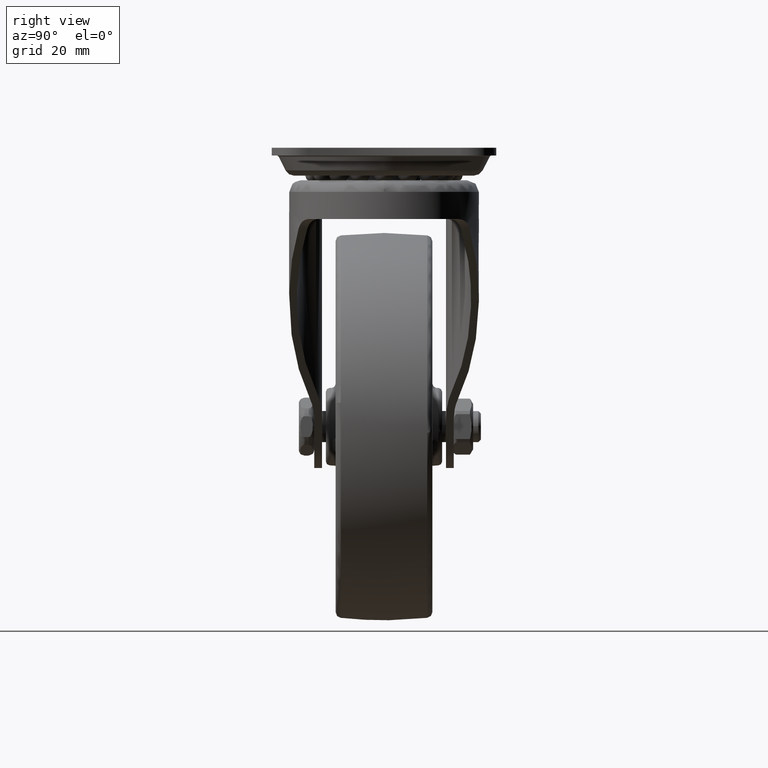
[diagram: clean part render]
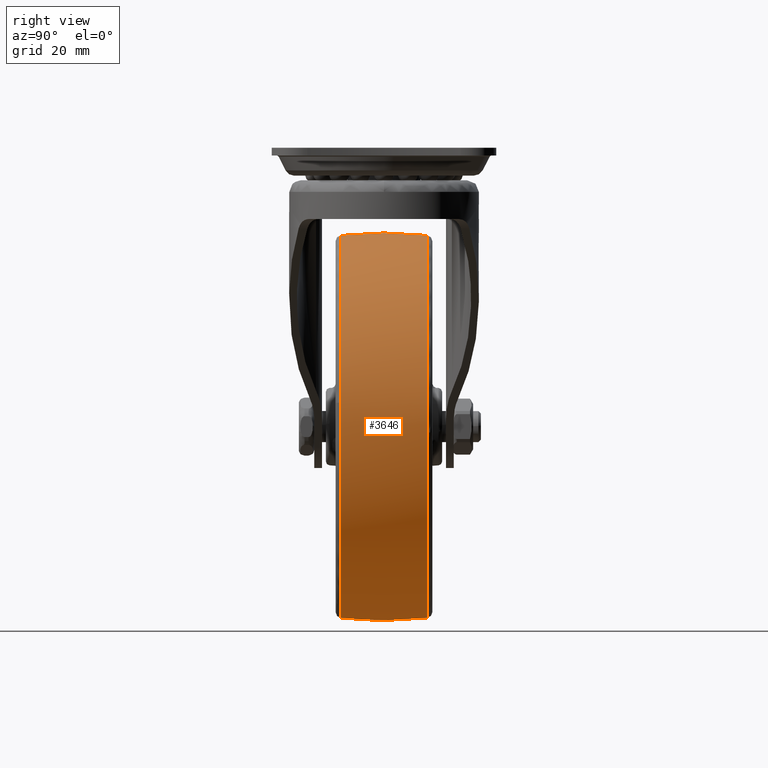
[diagram: same view with one face highlighted and labeled with its STEP entity id]
A machine part, right view. The second image highlights one B-rep face of the part: STEP entity #3646.
In plain terms, the highlighted face is a freeform B-spline surface patch.
Its self-contained STEP definition (entity closure, byte-faithful):
#2603=CARTESIAN_POINT('',(17.351149720172089,11.167499023491850,-71.517585406530657));
#2604=VERTEX_POINT('',#2603);
#2618=CARTESIAN_POINT('',(-32.0,11.167484830604160,-119.374480036664590));
#2619=VERTEX_POINT('',#2618);
#2620=CARTESIAN_POINT('',(17.351149720172089,11.167499023491857,-71.517585406530657));
#2621=CARTESIAN_POINT('',(15.879514701563959,11.167484830604161,-119.374480036664580));
#2622=CARTESIAN_POINT('',(-32.0,11.167484830604160,-119.374480036664590));
#2630=(BOUNDED_CURVE()B_SPLINE_CURVE(2,(#2620,#2621,#2622),.UNSPECIFIED.,.F.,.U.)B_SPLINE_CURVE_WITH_KNOTS((3,3),(0.255400342687223,0.500000000000000),.UNSPECIFIED.)CURVE()GEOMETRIC_REPRESENTATION_ITEM()RATIONAL_B_SPLINE_CURVE((0.987619549190724,0.713433676195973,1.0))REPRESENTATION_ITEM(''));
#2631=EDGE_CURVE('',#2604,#2619,#2630,.T.);
#2633=CARTESIAN_POINT('',(-81.044247313738538,11.167491407916470,-75.700965824303069));
#2634=VERTEX_POINT('',#2633);
#2648=CARTESIAN_POINT('',(-81.183578000515638,11.167493547169890,-65.662392937721791));
#2649=VERTEX_POINT('',#2648);
#2650=CARTESIAN_POINT('',(-81.044247313738538,11.167491407916467,-75.700965824303069));
#2651=CARTESIAN_POINT('',(-81.374479220250251,11.167491956815107,-72.860047488954109));
#2652=CARTESIAN_POINT('',(-81.374479151444035,11.167492573214350,-70.000000261031047));
#2653=CARTESIAN_POINT('',(-81.374479099166493,11.167493041541691,-67.826995757362397));
#2654=CARTESIAN_POINT('',(-81.183578000515638,11.167493547169892,-65.662392937721791));
#2662=(BOUNDED_CURVE()B_SPLINE_CURVE(2,(#2650,#2651,#2652,#2653,#2654),.UNSPECIFIED.,.F.,.U.)B_SPLINE_CURVE_WITH_KNOTS((3,2,3),(0.730000070278203,0.750000000000000,0.765281546649790),.UNSPECIFIED.)CURVE()GEOMETRIC_REPRESENTATION_ITEM()RATIONAL_B_SPLINE_CURVE((0.956886256515248,0.976568624830960,1.0,0.982096554453180,0.966381847612886))REPRESENTATION_ITEM(''));
#2663=EDGE_CURVE('',#2634,#2649,#2662,.T.);
#2752=CARTESIAN_POINT('',(-32.0,11.167512690355380,-20.625523094152811));
#2753=VERTEX_POINT('',#2752);
#2754=CARTESIAN_POINT('',(-81.183578000515638,11.167493547169887,-65.662392937721791));
#2755=CARTESIAN_POINT('',(-77.211676609979179,11.167504013356263,-20.625523206741690));
#2756=CARTESIAN_POINT('',(-32.0,11.167512690355380,-20.625523094152811));
#2764=(BOUNDED_CURVE()B_SPLINE_CURVE(2,(#2754,#2755,#2756),.UNSPECIFIED.,.F.,.U.)B_SPLINE_CURVE_WITH_KNOTS((3,3),(0.765281546649790,1.0),.UNSPECIFIED.)CURVE()GEOMETRIC_REPRESENTATION_ITEM()RATIONAL_B_SPLINE_CURVE((0.966381847612886,0.725010226733367,1.0))REPRESENTATION_ITEM(''));
#2765=EDGE_CURVE('',#2649,#2753,#2764,.T.);
#2767=CARTESIAN_POINT('',(-32.0,11.167512690355380,-20.625523094152811));
#2768=CARTESIAN_POINT('',(17.374476905847200,11.167512690355382,-20.625523094152818));
#2769=CARTESIAN_POINT('',(17.374476905847200,11.167498760479770,-70.000001565408681));
#2770=CARTESIAN_POINT('',(17.374476905847200,11.167498546353475,-70.758972770093905));
#2771=CARTESIAN_POINT('',(17.351149720172089,11.167499023491857,-71.517585406530657));
#2779=(BOUNDED_CURVE()B_SPLINE_CURVE(2,(#2767,#2768,#2769,#2770,#2771),.UNSPECIFIED.,.F.,.U.)B_SPLINE_CURVE_WITH_KNOTS((3,2,3),(0.0,0.250000000000000,0.255400342687223),.UNSPECIFIED.)CURVE()GEOMETRIC_REPRESENTATION_ITEM()RATIONAL_B_SPLINE_CURVE((1.0,0.707106781186548,1.0,0.993673104990574,0.987619549190724))REPRESENTATION_ITEM(''));
#2780=EDGE_CURVE('',#2753,#2604,#2779,.T.);
#2821=CARTESIAN_POINT('',(-14.516222482524450,-11.167489464854841,-116.175282812570200));
#2822=VERTEX_POINT('',#2821);
#2823=CARTESIAN_POINT('',(-32.0,-11.167488677243210,-119.374479604382800));
#2824=VERTEX_POINT('',#2823);
#2825=CARTESIAN_POINT('',(-14.516222482524451,-11.167489464854839,-116.175282812570200));
#2826=CARTESIAN_POINT('',(-22.965415353786732,-11.167488677243217,-119.374479604382830));
#2827=CARTESIAN_POINT('',(-32.0,-11.167488677243210,-119.374479604382800));
#2835=(BOUNDED_CURVE()B_SPLINE_CURVE(2,(#2825,#2826,#2827),.UNSPECIFIED.,.F.,.U.)B_SPLINE_CURVE_WITH_KNOTS((3,3),(0.439864363426972,0.500000000000000),.UNSPECIFIED.)CURVE()GEOMETRIC_REPRESENTATION_ITEM()RATIONAL_B_SPLINE_CURVE((0.892987461751840,0.929546719354919,1.0))REPRESENTATION_ITEM(''));
#2836=EDGE_CURVE('',#2822,#2824,#2835,.T.);
#2900=CARTESIAN_POINT('',(16.985144911769869,-11.167502262737820,-63.811737090141683));
#2901=VERTEX_POINT('',#2900);
#2915=CARTESIAN_POINT('',(-32.0,-11.167512690355339,-20.625523094152811));
#2916=VERTEX_POINT('',#2915);
#2917=CARTESIAN_POINT('',(-32.0,-11.167512690355339,-20.625523094152811));
#2918=CARTESIAN_POINT('',(11.529455787841897,-11.167512690355341,-20.625523094152815));
#2919=CARTESIAN_POINT('',(16.985144911769869,-11.167502262737825,-63.811737090141683));
#2927=(BOUNDED_CURVE()B_SPLINE_CURVE(2,(#2917,#2918,#2919),.UNSPECIFIED.,.F.,.U.)B_SPLINE_CURVE_WITH_KNOTS((3,3),(0.0,0.228321252483564),.UNSPECIFIED.)CURVE()GEOMETRIC_REPRESENTATION_ITEM()RATIONAL_B_SPLINE_CURVE((1.0,0.732505013746279,0.953608349848746))REPRESENTATION_ITEM(''));
#2928=EDGE_CURVE('',#2916,#2901,#2927,.T.);
#2930=CARTESIAN_POINT('',(-81.044249517506259,-11.167471308522110,-75.700966427871975));
#2931=VERTEX_POINT('',#2930);
#2932=CARTESIAN_POINT('',(-81.044249517506259,-11.167471308522110,-75.700966427871975));
#2933=CARTESIAN_POINT('',(-81.374481405996491,-11.167472375807362,-72.860047916145277));
#2934=CARTESIAN_POINT('',(-81.374481272208968,-11.167473574341621,-70.000000507551491));
#2935=CARTESIAN_POINT('',(-81.374478962565945,-11.167494265258236,-20.625523333228436));
#2936=CARTESIAN_POINT('',(-32.0,-11.167512690355339,-20.625523094152811));
#2944=(BOUNDED_CURVE()B_SPLINE_CURVE(2,(#2932,#2933,#2934,#2935,#2936),.UNSPECIFIED.,.F.,.U.)B_SPLINE_CURVE_WITH_KNOTS((3,2,3),(0.730000069095983,0.750000000000000,1.0),.UNSPECIFIED.)CURVE()GEOMETRIC_REPRESENTATION_ITEM()RATIONAL_B_SPLINE_CURVE((0.956886254188350,0.976568623445904,1.0,0.707106781186548,1.0))REPRESENTATION_ITEM(''));
#2945=EDGE_CURVE('',#2931,#2916,#2944,.T.);
#2980=CARTESIAN_POINT('',(16.985144911769869,-11.167502262737825,-63.811737090141683));
#2981=CARTESIAN_POINT('',(17.374476905847196,-11.167501439187902,-66.893621891218842));
#2982=CARTESIAN_POINT('',(17.374476905847200,-11.167500683799281,-70.000001349267805));
#2983=CARTESIAN_POINT('',(17.374476905847192,-11.167492391538365,-104.100209095487200));
#2984=CARTESIAN_POINT('',(-14.516222482524453,-11.167489464854839,-116.175282812570220));
#2992=(BOUNDED_CURVE()B_SPLINE_CURVE(2,(#2980,#2981,#2982,#2983,#2984),.UNSPECIFIED.,.F.,.U.)B_SPLINE_CURVE_WITH_KNOTS((3,2,3),(0.228321252483565,0.250000000000000,0.439864363426972),.UNSPECIFIED.)CURVE()GEOMETRIC_REPRESENTATION_ITEM()RATIONAL_B_SPLINE_CURVE((0.953608349848746,0.974601767440268,1.0,0.777560061831628,0.892987461751840))REPRESENTATION_ITEM(''));
#2993=EDGE_CURVE('',#2901,#2822,#2992,.T.);
#3553=CARTESIAN_POINT('',(-80.912141797698155,12.293386680871293,-75.685629083880698));
#3554=CARTESIAN_POINT('',(-81.665582081654208,6.170093837611952,-75.773210241318949));
#3555=CARTESIAN_POINT('',(-81.665582081654222,-3.673819E-015,-75.773210241318964));
#3556=CARTESIAN_POINT('',(-81.665582081654208,-6.170090758022485,-75.773210241318949));
#3557=CARTESIAN_POINT('',(-80.912142546953007,-12.293380591592445,-75.685629170975318));
#3558=CARTESIAN_POINT('',(-81.241486505969746,12.293386680871292,-72.852353322545468));
#3559=CARTESIAN_POINT('',(-82.0,6.170093837611949,-72.896290836183084));
#3560=CARTESIAN_POINT('',(-81.999999999999986,-3.673819E-015,-72.896290836183084));
#3561=CARTESIAN_POINT('',(-82.0,-6.170090758022485,-72.896290836183070));
#3562=CARTESIAN_POINT('',(-81.241487260269622,-12.293380591592436,-72.852353366238887));
#3563=CARTESIAN_POINT('',(-81.241486505969760,12.293386680871290,-70.0));
#3564=CARTESIAN_POINT('',(-82.0,6.170093837611950,-70.0));
#3565=CARTESIAN_POINT('',(-82.0,-3.673819E-015,-70.0));
#3566=CARTESIAN_POINT('',(-82.0,-6.170090758022486,-70.0));
#3567=CARTESIAN_POINT('',(-81.241487260269622,-12.293380591592440,-70.0));
#3568=CARTESIAN_POINT('',(-81.241486505969789,12.293386680871290,-20.758513494030254));
#3569=CARTESIAN_POINT('',(-82.0,6.170093837611950,-20.000000000000004));
#3570=CARTESIAN_POINT('',(-82.0,-3.673819E-015,-19.999999999999996));
#3571=CARTESIAN_POINT('',(-82.000000000000014,-6.170090758022486,-20.000000000000004));
#3572=CARTESIAN_POINT('',(-81.241487260269636,-12.293380591592442,-20.758512739730367));
#3573=CARTESIAN_POINT('',(-32.000000000000007,12.293386680871290,-20.758513494030257));
#3574=CARTESIAN_POINT('',(-32.000000000000007,6.170093837611950,-20.0));
#3575=CARTESIAN_POINT('',(-32.0,-3.673819E-015,-20.0));
#3576=CARTESIAN_POINT('',(-32.0,-6.170090758022486,-20.000000000000004));
#3577=CARTESIAN_POINT('',(-32.000000000000007,-12.293380591592440,-20.758512739730378));
#3578=CARTESIAN_POINT('',(17.241486505969753,12.293386680871290,-20.758513494030254));
#3579=CARTESIAN_POINT('',(18.000000000000004,6.170093837611950,-20.000000000000004));
#3580=CARTESIAN_POINT('',(18.000000000000007,-3.673819E-015,-19.999999999999996));
#3581=CARTESIAN_POINT('',(18.000000000000011,-6.170090758022486,-20.000000000000004));
#3582=CARTESIAN_POINT('',(17.241487260269633,-12.293380591592442,-20.758512739730367));
#3583=CARTESIAN_POINT('',(17.241486505969753,12.293386680871290,-70.0));
#3584=CARTESIAN_POINT('',(18.000000000000007,6.170093837611950,-70.0));
#3585=CARTESIAN_POINT('',(18.0,-3.673819E-015,-70.0));
#3586=CARTESIAN_POINT('',(18.0,-6.170090758022486,-70.0));
#3587=CARTESIAN_POINT('',(17.241487260269626,-12.293380591592440,-70.0));
#3588=CARTESIAN_POINT('',(17.241486505969753,12.293386680871290,-119.241486505969770));
#3589=CARTESIAN_POINT('',(18.000000000000004,6.170093837611950,-120.0));
#3590=CARTESIAN_POINT('',(18.000000000000007,-3.673819E-015,-120.0));
#3591=CARTESIAN_POINT('',(18.000000000000011,-6.170090758022486,-120.0));
#3592=CARTESIAN_POINT('',(17.241487260269633,-12.293380591592442,-119.241487260269620));
#3593=CARTESIAN_POINT('',(-32.000000000000007,12.293386680871290,-119.241486505969820));
#3594=CARTESIAN_POINT('',(-32.000000000000007,6.170093837611950,-120.000000000000040));
#3595=CARTESIAN_POINT('',(-32.0,-3.673819E-015,-120.0));
#3596=CARTESIAN_POINT('',(-32.0,-6.170090758022486,-120.000000000000040));
#3597=CARTESIAN_POINT('',(-32.000000000000007,-12.293380591592440,-119.241487260269590));
#3605=(BOUNDED_SURFACE()B_SPLINE_SURFACE(2,2,((#3553,#3558,#3563,#3568,#3573,#3578,#3583,#3588,#3593),(#3554,#3559,#3564,#3569,#3574,#3579,#3584,#3589,#3594),(#3555,#3560,#3565,#3570,#3575,#3580,#3585,#3590,#3595),(#3556,#3561,#3566,#3571,#3576,#3581,#3586,#3591,#3596),(#3557,#3562,#3567,#3572,#3577,#3582,#3587,#3592,#3597)),.UNSPECIFIED.,.F.,.F.,.U.)B_SPLINE_SURFACE_WITH_KNOTS((3,2,3),(3,2,2,2,3),(0.0,12.496629759044810,24.993253382269739),(0.0,6.627415615382595,89.470128090001595,172.312840564620590,255.155553039239610),.UNSPECIFIED.)GEOMETRIC_REPRESENTATION_ITEM()RATIONAL_B_SPLINE_SURFACE(((0.929539305940074,0.948659223590073,0.971421029411789,0.686898397284292,0.971421029411789,0.686898397284292,0.971421029411789,0.686898397284292,0.971421029411789),(0.941323491873215,0.960685801279188,0.983736168703693,0.695606515788855,0.983736168703693,0.695606515788855,0.983736168703693,0.695606515788855,0.983736168703693),(0.956886126402807,0.976568547383107,1.0,0.707106781186548,1.0,0.707106781186548,1.0,0.707106781186548,1.0),(0.941323499514438,0.960685809077585,0.983736176689201,0.695606521435462,0.983736176689201,0.695606521435462,0.983736176689201,0.695606521435462,0.983736176689201),(0.929539317512098,0.948659235400124,0.971421041505206,0.686898405835630,0.971421041505206,0.686898405835630,0.971421041505206,0.686898405835630,0.971421041505206)))REPRESENTATION_ITEM('')SURFACE());
#3606=ORIENTED_EDGE('',*,*,#2765,.F.);
#3607=ORIENTED_EDGE('',*,*,#2663,.F.);
#3608=CARTESIAN_POINT('',(-81.044247313738524,11.167491407916472,-75.700965824303069));
#3609=CARTESIAN_POINT('',(-81.665584297877444,5.601264237661876,-75.773191175565515));
#3610=CARTESIAN_POINT('',(-81.665584287883675,3.382763E-013,-75.773191261526193));
#3611=CARTESIAN_POINT('',(-81.665584277889963,-5.601254092977348,-75.773191347486716));
#3612=CARTESIAN_POINT('',(-81.044249517506259,-11.167471308522105,-75.700966427871975));
#3620=(BOUNDED_CURVE()B_SPLINE_CURVE(2,(#3608,#3609,#3610,#3611,#3612),.UNSPECIFIED.,.F.,.U.)B_SPLINE_CURVE_WITH_KNOTS((3,2,3),(0.444815595098136,0.500000000000000,0.555184306432953),.UNSPECIFIED.)CURVE()GEOMETRIC_REPRESENTATION_ITEM()RATIONAL_B_SPLINE_CURVE((0.931711142107925,0.942737009908395,0.956886118190660,0.942737035155515,0.931711181456197))REPRESENTATION_ITEM(''));
#3621=EDGE_CURVE('',#2634,#2931,#3620,.T.);
#3622=ORIENTED_EDGE('',*,*,#3621,.T.);
#3623=ORIENTED_EDGE('',*,*,#2945,.T.);
#3624=ORIENTED_EDGE('',*,*,#2928,.T.);
#3625=ORIENTED_EDGE('',*,*,#2993,.T.);
#3626=ORIENTED_EDGE('',*,*,#2836,.T.);
#3627=CARTESIAN_POINT('',(-32.000000000000007,11.167484830604165,-119.374480036664610));
#3628=CARTESIAN_POINT('',(-32.000000000000007,5.601260917922247,-120.000000000000010));
#3629=CARTESIAN_POINT('',(-32.0,-3.673819E-015,-120.0));
#3630=CARTESIAN_POINT('',(-32.000000000000007,-5.601262859420757,-120.000000000000060));
#3631=CARTESIAN_POINT('',(-32.000000000000007,-11.167488677243213,-119.374479604382780));
#3639=(BOUNDED_CURVE()B_SPLINE_CURVE(2,(#3627,#3628,#3629,#3630,#3631),.UNSPECIFIED.,.F.,.U.)B_SPLINE_CURVE_WITH_KNOTS((3,2,3),(0.444815627321041,0.500000000000000,0.555184391524025),.UNSPECIFIED.)CURVE()GEOMETRIC_REPRESENTATION_ITEM()RATIONAL_B_SPLINE_CURVE((0.973690742578610,0.985213391905855,1.0,0.985213386856335,0.973690734708806))REPRESENTATION_ITEM(''));
#3640=EDGE_CURVE('',#2619,#2824,#3639,.T.);
#3641=ORIENTED_EDGE('',*,*,#3640,.F.);
#3642=ORIENTED_EDGE('',*,*,#2631,.F.);
#3643=ORIENTED_EDGE('',*,*,#2780,.F.);
#3644=EDGE_LOOP('',(#3606,#3607,#3622,#3623,#3624,#3625,#3626,#3641,#3642,#3643));
#3645=FACE_OUTER_BOUND('',#3644,.T.);
#3646=ADVANCED_FACE('',(#3645),#3605,.T.);